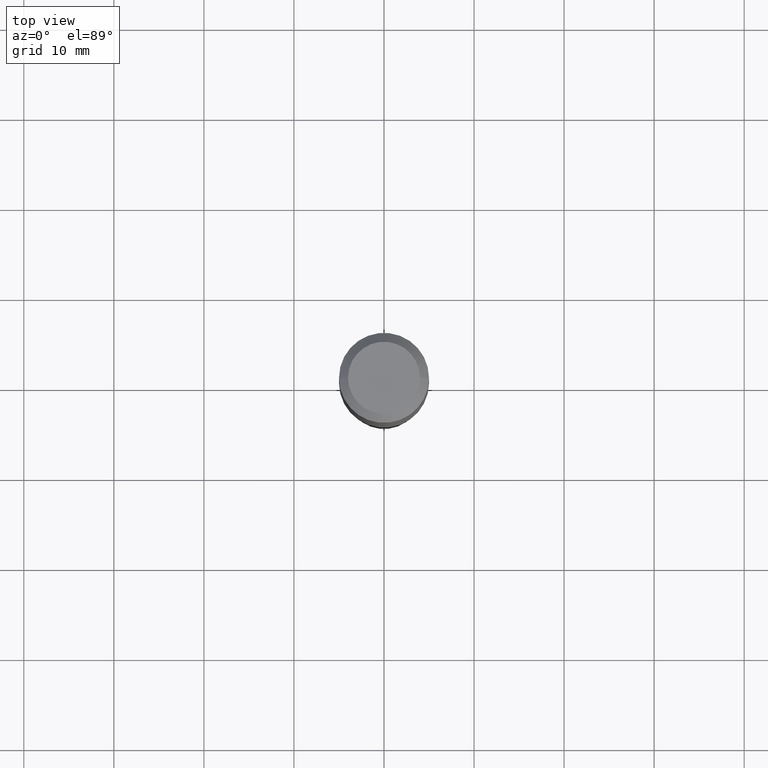
[diagram: clean part render]
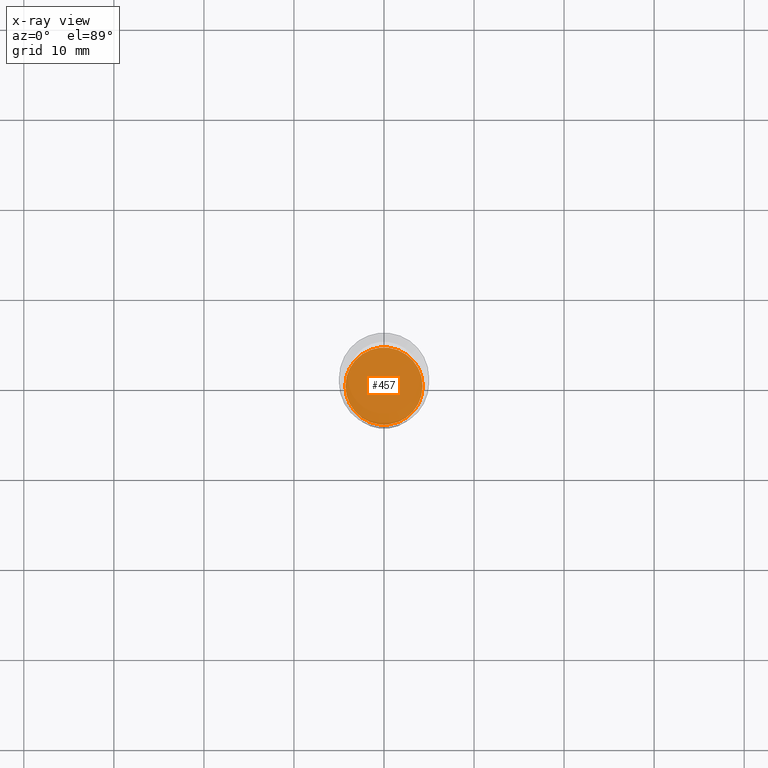
[diagram: x-ray — body ghosted, one internal face saturated and labeled with its STEP entity id]
A machine part, top view, then the same camera in x-ray: the body is ghosted and one INTERNAL B-rep face — a face not visible from any outside direction — is saturated and labeled: STEP entity #457.
In plain terms, the highlighted planar face has unit normal (-0, 0, 1).
Its self-contained STEP definition (entity closure, byte-faithful):
#10 = CIRCLE ( 'NONE', #76, 0.1688000000000000334 ) ;
#41 = ORIENTED_EDGE ( 'NONE', *, *, #109, .F. ) ;
#42 = DIRECTION ( 'NONE',  ( 1.000000000000000000, -6.982962677686265922E-15, 4.876176775795935793E-29 ) ) ;
#47 = PLANE ( 'NONE',  #483 ) ;
#66 = EDGE_LOOP ( 'NONE', ( #41, #324 ) ) ;
#76 = AXIS2_PLACEMENT_3D ( 'NONE', #449, #489, #371 ) ;
#79 = CARTESIAN_POINT ( 'NONE',  ( 7.600267408520522536E-29, -3.981435805330322322E-15, -2.125599999999999934 ) ) ;
#109 = EDGE_CURVE ( 'NONE', #179, #303, #10, .T. ) ;
#179 = VERTEX_POINT ( 'NONE', #209 ) ;
#209 = CARTESIAN_POINT ( 'NONE',  ( 0.1688000000000000334, -8.600216833838431236E-15, -2.125599999999999934 ) ) ;
#297 = DIRECTION ( 'NONE',  ( -2.445468806185136597E-29, 3.491481338843145583E-15, 1.000000000000000000 ) ) ;
#303 = VERTEX_POINT ( 'NONE', #503 ) ;
#324 = ORIENTED_EDGE ( 'NONE', *, *, #505, .F. ) ;
#341 = CARTESIAN_POINT ( 'NONE',  ( 5.198088494427125733E-29, -7.421492733844989428E-15, -2.125599999999999934 ) ) ;
#371 = DIRECTION ( 'NONE',  ( 1.000000000000000000, -6.982962677686266711E-15, 0.000000000000000000 ) ) ;
#376 = DIRECTION ( 'NONE',  ( 1.000000000000000000, -6.982962677686266711E-15, 0.000000000000000000 ) ) ;
#395 = DIRECTION ( 'NONE',  ( -2.438088387897960049E-29, 3.491481338843145188E-15, 1.000000000000000000 ) ) ;
#398 = FACE_OUTER_BOUND ( 'NONE', #66, .T. ) ;
#445 = AXIS2_PLACEMENT_3D ( 'NONE', #341, #297, #376 ) ;
#449 = CARTESIAN_POINT ( 'NONE',  ( 5.198088494427125733E-29, -7.421492733844989428E-15, -2.125599999999999934 ) ) ;
#457 = ADVANCED_FACE ( 'NONE', ( #398 ), #47, .F. ) ;
#483 = AXIS2_PLACEMENT_3D ( 'NONE', #79, #395, #42 ) ;
#489 = DIRECTION ( 'NONE',  ( -2.445468806185136597E-29, 3.491481338843145583E-15, 1.000000000000000000 ) ) ;
#493 = CIRCLE ( 'NONE', #445, 0.1688000000000000334 ) ;
#503 = CARTESIAN_POINT ( 'NONE',  ( -0.1688000000000000334, -6.219447368707829468E-15, -2.125599999999999934 ) ) ;
#505 = EDGE_CURVE ( 'NONE', #303, #179, #493, .T. ) ;